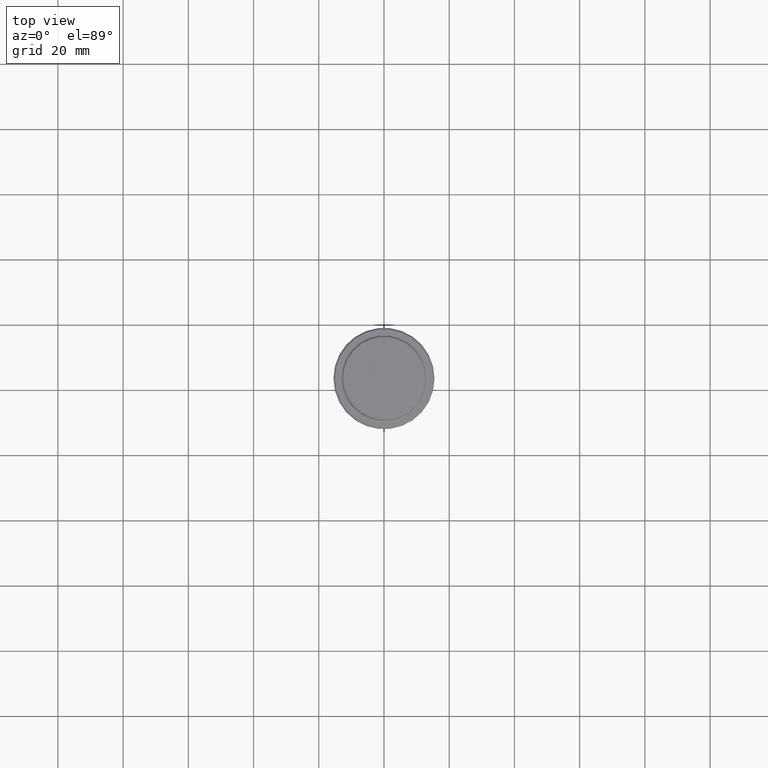
[diagram: clean part render]
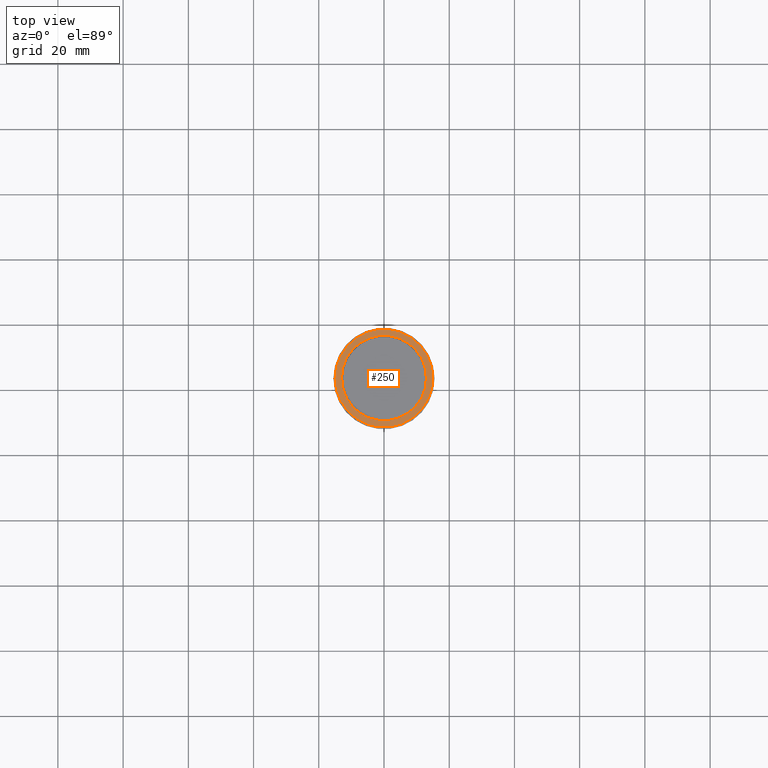
[diagram: same view with one face highlighted and labeled with its STEP entity id]
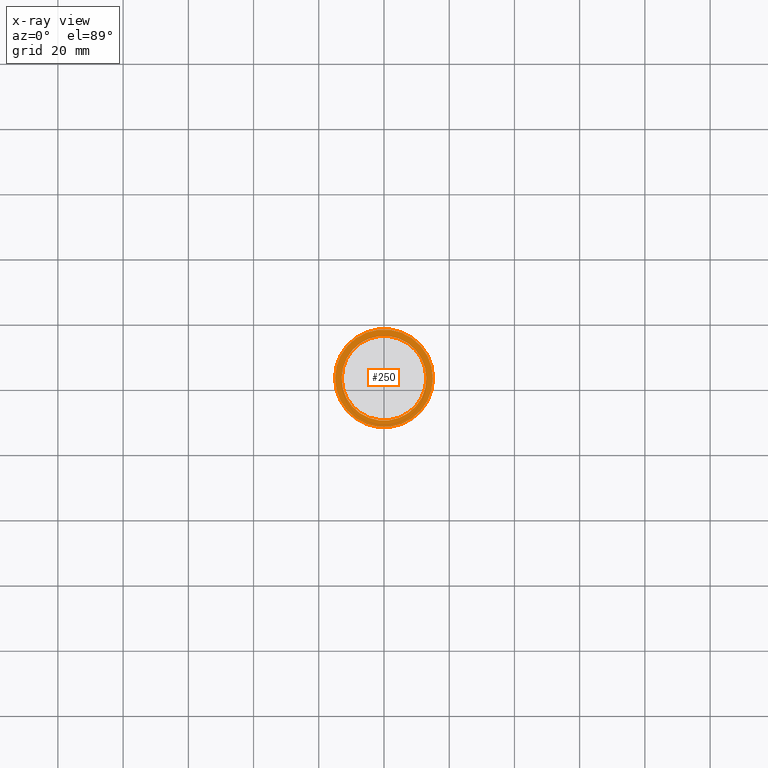
[diagram: x-ray of the same camera — body ghosted, the highlighted face saturated]
A machine part, top view. The second image highlights one B-rep face of the part: STEP entity #250.
The next image is the same camera in x-ray: the body ghosted, the highlighted face saturated — about 0% of this face is hidden behind the body in this view.
In plain terms, the highlighted planar face has unit normal (0, -0, 1).
Its self-contained STEP definition (entity closure, byte-faithful):
#26 = CIRCLE ( 'NONE', #191, 12.99999999999999467 ) ;
#33 = CARTESIAN_POINT ( 'NONE',  ( 0.000000000000000000, 0.000000000000000000, -9.000000000000000000 ) ) ;
#65 = DIRECTION ( 'NONE',  ( 1.000000000000000000, 0.000000000000000000, 0.000000000000000000 ) ) ;
#96 = CIRCLE ( 'NONE', #458, 14.99999999999995737 ) ;
#189 = DIRECTION ( 'NONE',  ( 1.000000000000000000, 0.000000000000000000, 0.000000000000000000 ) ) ;
#190 = AXIS2_PLACEMENT_3D ( 'NONE', #1190, #204, #65 ) ;
#191 = AXIS2_PLACEMENT_3D ( 'NONE', #1210, #362, #787 ) ;
#203 = ORIENTED_EDGE ( 'NONE', *, *, #638, .T. ) ;
#204 = DIRECTION ( 'NONE',  ( 0.000000000000000000, -0.000000000000000000, 1.000000000000000000 ) ) ;
#250 = ADVANCED_FACE ( 'NONE', ( #855, #1406 ), #1064, .T. ) ;
#302 = CARTESIAN_POINT ( 'NONE',  ( 0.000000000000000000, 0.000000000000000000, -9.000000000000000000 ) ) ;
#362 = DIRECTION ( 'NONE',  ( 0.000000000000000000, 0.000000000000000000, -1.000000000000000000 ) ) ;
#363 = ORIENTED_EDGE ( 'NONE', *, *, #1306, .T. ) ;
#458 = AXIS2_PLACEMENT_3D ( 'NONE', #852, #543, #530 ) ;
#471 = DIRECTION ( 'NONE',  ( -0.000000000000000000, -0.000000000000000000, 1.000000000000000000 ) ) ;
#495 = EDGE_LOOP ( 'NONE', ( #203, #363 ) ) ;
#530 = DIRECTION ( 'NONE',  ( 1.000000000000000000, 0.000000000000000000, 0.000000000000000000 ) ) ;
#543 = DIRECTION ( 'NONE',  ( -0.000000000000000000, -0.000000000000000000, 1.000000000000000000 ) ) ;
#550 = EDGE_CURVE ( 'NONE', #1013, #1001, #647, .T. ) ;
#638 = EDGE_CURVE ( 'NONE', #1369, #1329, #96, .T. ) ;
#647 = CIRCLE ( 'NONE', #773, 12.99999999999999467 ) ;
#682 = ORIENTED_EDGE ( 'NONE', *, *, #745, .T. ) ;
#695 = EDGE_LOOP ( 'NONE', ( #1273, #682 ) ) ;
#724 = DIRECTION ( 'NONE',  ( 0.000000000000000000, 0.000000000000000000, -1.000000000000000000 ) ) ;
#745 = EDGE_CURVE ( 'NONE', #1001, #1013, #26, .T. ) ;
#773 = AXIS2_PLACEMENT_3D ( 'NONE', #302, #724, #189 ) ;
#787 = DIRECTION ( 'NONE',  ( 1.000000000000000000, 0.000000000000000000, 0.000000000000000000 ) ) ;
#802 = CIRCLE ( 'NONE', #1408, 14.99999999999995737 ) ;
#852 = CARTESIAN_POINT ( 'NONE',  ( 0.000000000000000000, 0.000000000000000000, -9.000000000000000000 ) ) ;
#855 = FACE_OUTER_BOUND ( 'NONE', #495, .T. ) ;
#899 = DIRECTION ( 'NONE',  ( 1.000000000000000000, 0.000000000000000000, 0.000000000000000000 ) ) ;
#968 = CARTESIAN_POINT ( 'NONE',  ( -12.99999999999999467, 1.592040838891558504E-15, -9.000000000000000000 ) ) ;
#972 = CARTESIAN_POINT ( 'NONE',  ( 12.99999999999999467, 0.000000000000000000, -9.000000000000000000 ) ) ;
#1001 = VERTEX_POINT ( 'NONE', #968 ) ;
#1013 = VERTEX_POINT ( 'NONE', #972 ) ;
#1064 = PLANE ( 'NONE',  #190 ) ;
#1119 = CARTESIAN_POINT ( 'NONE',  ( 14.99999999999995737, 1.867586368699711009E-15, -9.000000000000000000 ) ) ;
#1190 = CARTESIAN_POINT ( 'NONE',  ( 0.000000000000000000, 12.49999999999999289, -9.000000000000000000 ) ) ;
#1210 = CARTESIAN_POINT ( 'NONE',  ( 0.000000000000000000, 0.000000000000000000, -9.000000000000000000 ) ) ;
#1270 = CARTESIAN_POINT ( 'NONE',  ( -14.99999999999995737, 0.000000000000000000, -9.000000000000000000 ) ) ;
#1273 = ORIENTED_EDGE ( 'NONE', *, *, #550, .T. ) ;
#1306 = EDGE_CURVE ( 'NONE', #1329, #1369, #802, .T. ) ;
#1329 = VERTEX_POINT ( 'NONE', #1119 ) ;
#1369 = VERTEX_POINT ( 'NONE', #1270 ) ;
#1406 = FACE_BOUND ( 'NONE', #695, .T. ) ;
#1408 = AXIS2_PLACEMENT_3D ( 'NONE', #33, #471, #899 ) ;